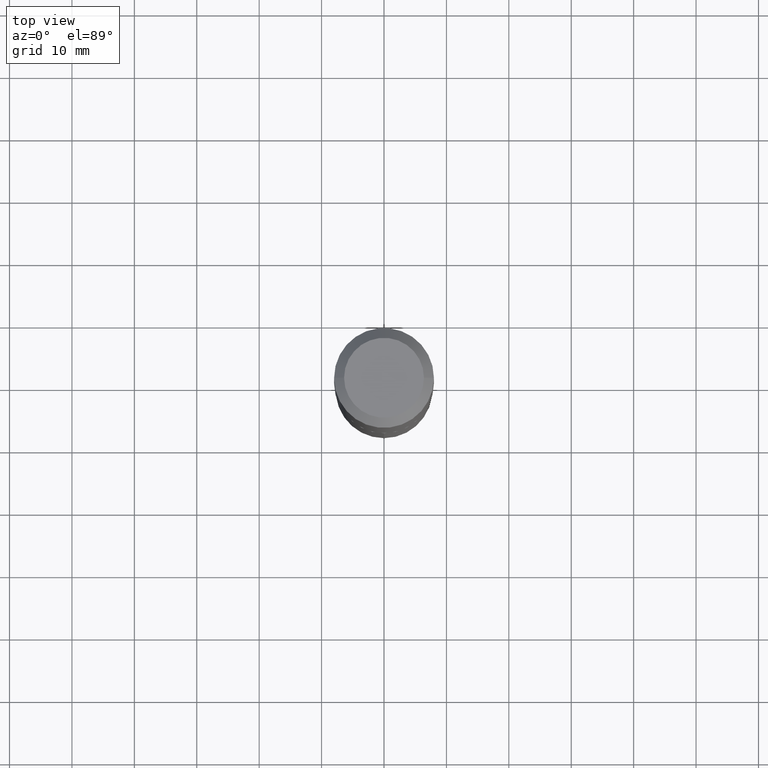
[diagram: clean part render]
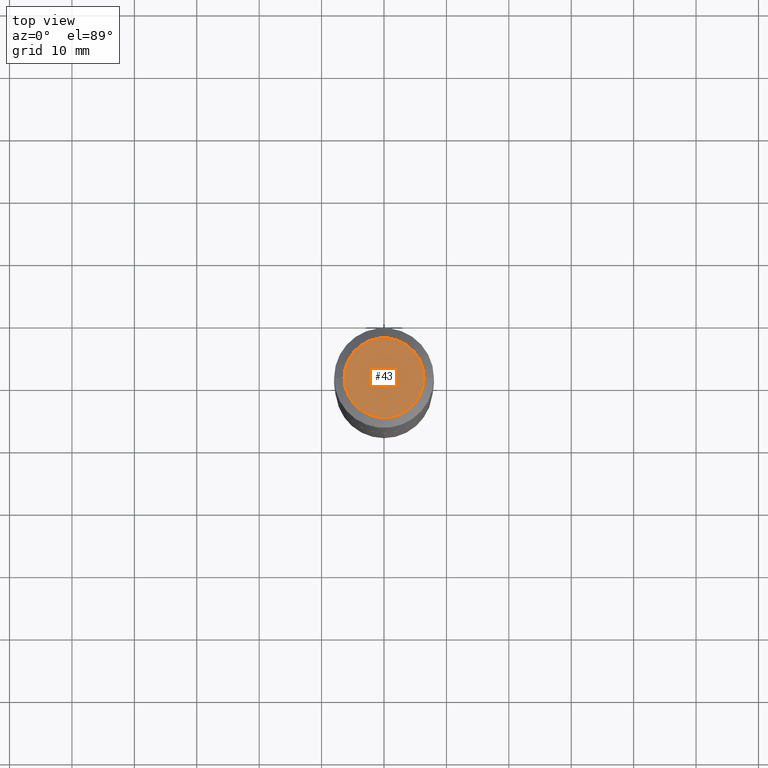
[diagram: same view with one face highlighted and labeled with its STEP entity id]
A machine part, top view. The second image highlights one B-rep face of the part: STEP entity #43.
In plain terms, the highlighted planar face has unit normal (0, -0, -1).
Its self-contained STEP definition (entity closure, byte-faithful):
#7 = EDGE_CURVE ( 'NONE', #82, #47, #271, .T. ) ;
#43 = ADVANCED_FACE ( 'NONE', ( #394 ), #216, .F. ) ;
#47 = VERTEX_POINT ( 'NONE', #212 ) ;
#57 = AXIS2_PLACEMENT_3D ( 'NONE', #168, #305, #468 ) ;
#82 = VERTEX_POINT ( 'NONE', #201 ) ;
#93 = EDGE_CURVE ( 'NONE', #47, #82, #118, .T. ) ;
#112 = CARTESIAN_POINT ( 'NONE',  ( -9.427742298522569579E-47, 1.346031739168368629E-32, 3.855188123715871501E-18 ) ) ;
#118 = CIRCLE ( 'NONE', #57, 0.2519600000000000173 ) ;
#120 = EDGE_LOOP ( 'NONE', ( #245, #248 ) ) ;
#143 = DIRECTION ( 'NONE',  ( 1.000000000000000000, -6.982962677686266711E-15, 4.876115136096691995E-29 ) ) ;
#168 = CARTESIAN_POINT ( 'NONE',  ( -9.427742298522569579E-47, 1.346031739168368629E-32, 3.855188123715871501E-18 ) ) ;
#177 = CARTESIAN_POINT ( 'NONE',  ( -4.713871149261284790E-47, 6.730158695841843144E-33, 1.927594061857935750E-18 ) ) ;
#201 = CARTESIAN_POINT ( 'NONE',  ( 0.2519600000000000173, -2.054606664725195058E-15, 3.855188123729206640E-18 ) ) ;
#212 = CARTESIAN_POINT ( 'NONE',  ( -0.2519600000000000173, 1.869391481036695286E-15, 3.855188123703182704E-18 ) ) ;
#216 = PLANE ( 'NONE',  #375 ) ;
#245 = ORIENTED_EDGE ( 'NONE', *, *, #93, .T. ) ;
#248 = ORIENTED_EDGE ( 'NONE', *, *, #7, .T. ) ;
#251 = DIRECTION ( 'NONE',  ( -2.445468806185136597E-29, 3.491481338843145583E-15, 1.000000000000000000 ) ) ;
#271 = CIRCLE ( 'NONE', #388, 0.2519600000000000173 ) ;
#305 = DIRECTION ( 'NONE',  ( -2.445468806185136597E-29, 3.491481338843145583E-15, 1.000000000000000000 ) ) ;
#362 = DIRECTION ( 'NONE',  ( -1.000000000000000000, 6.982962677686265922E-15, -4.876176775795935793E-29 ) ) ;
#375 = AXIS2_PLACEMENT_3D ( 'NONE', #177, #397, #362 ) ;
#388 = AXIS2_PLACEMENT_3D ( 'NONE', #112, #251, #143 ) ;
#394 = FACE_OUTER_BOUND ( 'NONE', #120, .T. ) ;
#397 = DIRECTION ( 'NONE',  ( 2.438088387897960049E-29, -3.491481338843145188E-15, -1.000000000000000000 ) ) ;
#468 = DIRECTION ( 'NONE',  ( 1.000000000000000000, -6.982962677686266711E-15, 4.876115136096691995E-29 ) ) ;